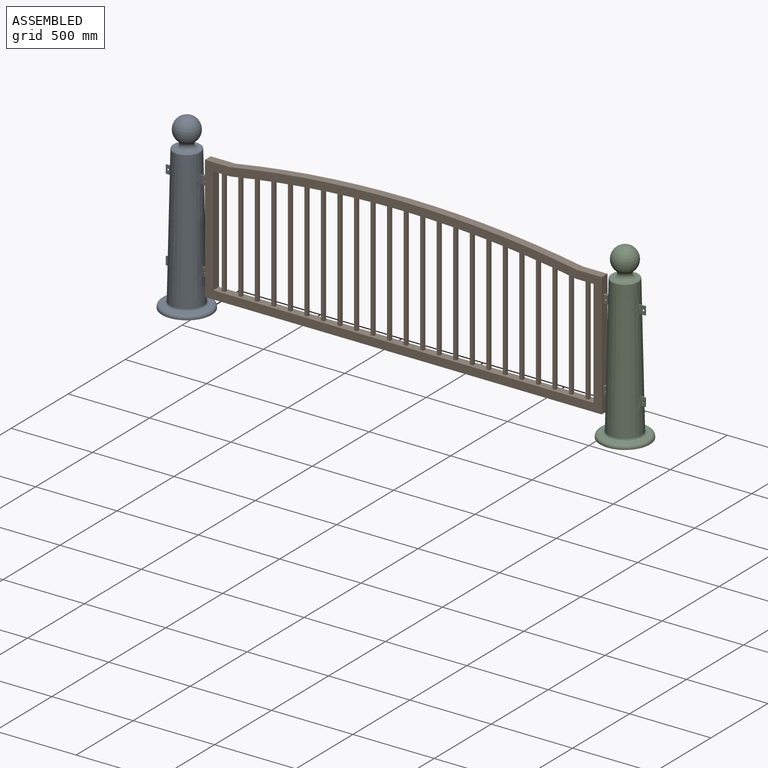
[diagram: assembled view]
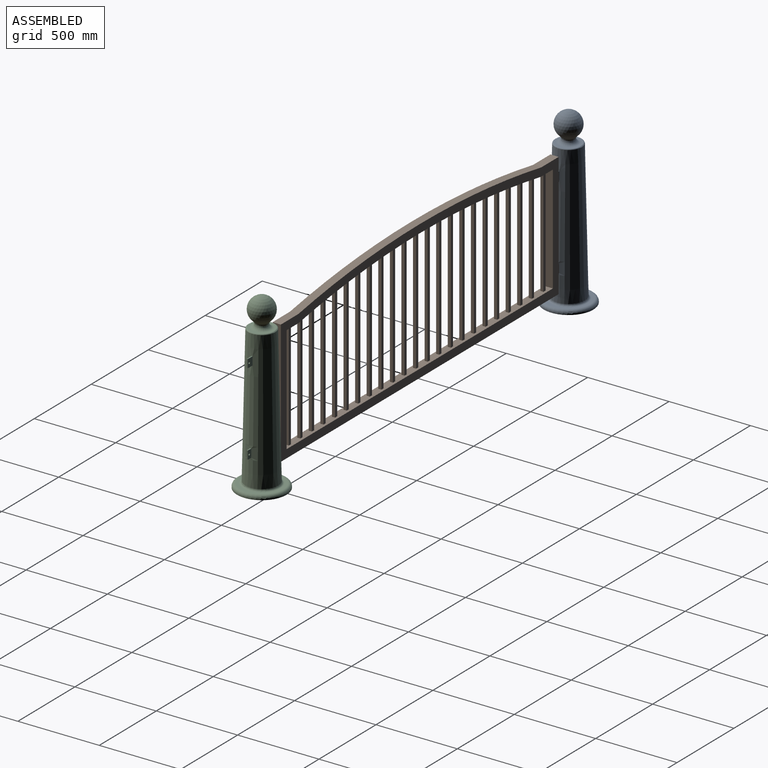
[diagram: assembled view, second angle]
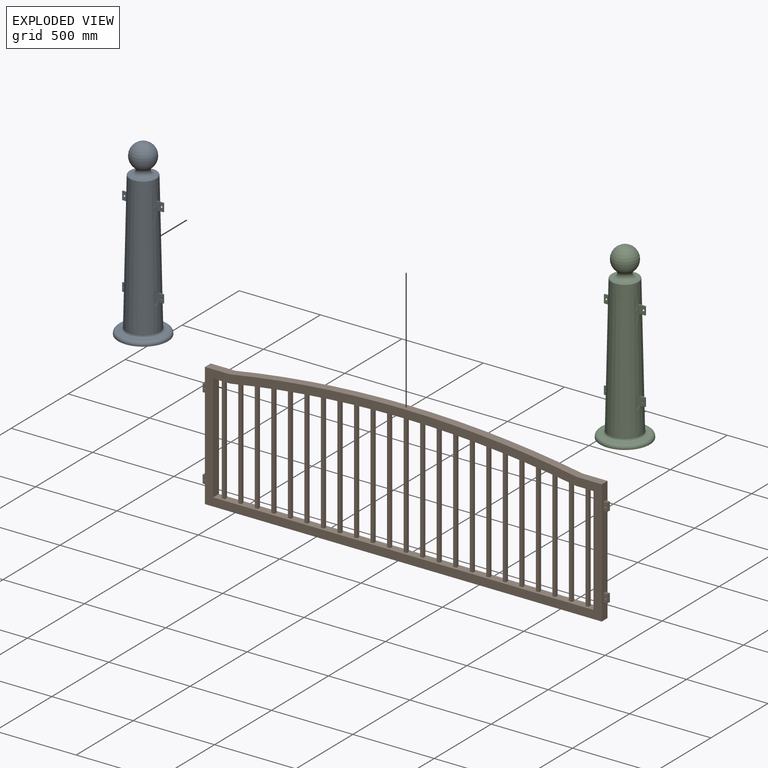
[diagram: exploded view]
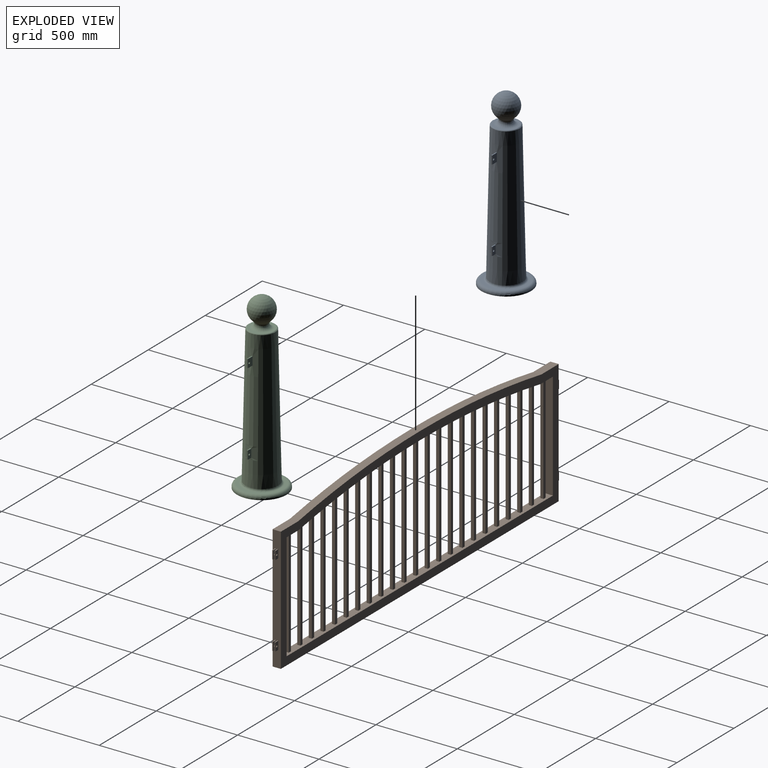
[diagram: exploded view, second angle]
ASSEMBLY  parts=3 mates=2
PART A: 35 faces, bbox 329.9x329.9x1074 mm
  f0: cone r=101.33mm half-angle=1.3deg, axis (0,0,-1), area 487300mm2, adj f8,f9,f11,f12,f14,f15,f17,f19
  f1: torus R=63.5mm, axis (0,0,-1), area 11492.2mm2, adj f2,f10
  f2: torus R=63.5mm, axis (0,0,-1), area 5539.6mm2, adj f1,f3
  f3: sphere r=76.2mm, area 64962.4mm2, adj f2
  f4: plane 304.8x304.8mm, normal (0,0,-1), area 72965.9mm2, adj f5
  f5: cylinder r=152.4mm len=304.8mm, axis (0,0,-1), area 6080.5mm2, adj f4,f6
  f6: torus R=133.35mm, axis (0,0,-1), area 27352.1mm2, adj f5,f7
  f7: plane 266.7x266.7mm, normal (0,0,1), area 15019.9mm2, adj f6,f8
  f8: torus R=114.02mm, axis (0,0,-1), area 13100.4mm2, adj f0,f7
  f9: torus R=76.34mm, axis (0,0,-1), area 4964.9mm2, adj f0,f10
  f10: plane 152.68x152.68mm, normal (0,0,1), area 5640.2mm2, adj f1,f9
  f11: plane 50.8x41.71mm, normal (0,1,0), area 1963.6mm2, adj f0,f12,f13,f14,f16
  f12: plane 41.71x6.35mm, normal (0,0,1), area 264.6mm2, adj f0,f11,f13,f15
  f13: plane 50.8x6.35mm, normal (1,0,0), area 322.6mm2, adj f11,f12,f14,f15
  f14: plane 40.59x6.35mm, normal (0,0,-1), area 257.5mm2, adj f0,f11,f13,f15
  f15: plane 50.8x41.71mm, normal (0,-1,0), area 1963.6mm2, adj f0,f12,f13,f14,f16
  f16: cylinder r=6.35mm len=12.7mm, axis (0,-1,0), area 253.4mm2, adj f11,f15
  f17: plane 30.5x6.35mm, normal (0,0,1), area 193.4mm2, adj f0,f18,f19,f20
  f18: plane 50.8x6.35mm, normal (1,0,0), area 322.6mm2, adj f17,f19,f20,f21
  f19: plane 50.8x30.5mm, normal (0,1,0), area 1394mm2, adj f0,f17,f18,f21,f22
  f20: plane 50.8x30.5mm, normal (0,-1,0), area 1394mm2, adj f0,f17,f18,f21,f22
  f21: plane 29.37x6.35mm, normal (0,0,-1), area 186.3mm2, adj f0,f18,f19,f20
  f22: cylinder r=6.35mm len=12.7mm, axis (0,-1,0), area 253.4mm2, adj f19,f20
  f23: plane 50.8x41.71mm, normal (0,1,0), area 1963.6mm2, adj f0,f24,f25,f26,f28
  f24: plane 41.71x6.35mm, normal (0,0,1), area 264.6mm2, adj f0,f23,f25,f27
  f25: plane 50.8x6.35mm, normal (-1,0,0), area 322.6mm2, adj f23,f24,f26,f27
  f26: plane 40.59x6.35mm, normal (0,0,-1), area 257.5mm2, adj f0,f23,f25,f27
  f27: plane 50.8x41.71mm, normal (0,-1,0), area 1963.6mm2, adj f0,f24,f25,f26,f28
  f28: cylinder r=6.35mm len=12.7mm, axis (0,-1,0), area 253.4mm2, adj f23,f27
  f29: plane 30.5x6.35mm, normal (0,0,1), area 193.4mm2, adj f0,f30,f31,f32
  f30: plane 50.8x6.35mm, normal (-1,0,0), area 322.6mm2, adj f29,f31,f32,f33
  f31: plane 50.8x30.5mm, normal (0,1,0), area 1394mm2, adj f0,f29,f30,f33,f34
  f32: plane 50.8x30.5mm, normal (0,-1,0), area 1394mm2, adj f0,f29,f30,f33,f34
  f33: plane 29.37x6.35mm, normal (0,0,-1), area 186.3mm2, adj f0,f30,f31,f32
  f34: cylinder r=6.35mm len=12.7mm, axis (0,-1,0), area 253.4mm2, adj f31,f32
PART B: 154 faces, bbox 2489.2x50.8x854.5 mm
  f0: plane 762x50.8mm, normal (1,0,0), area 37419.3mm2, adj f7,f8,f12,f13,f130,f131,f132,f133
  f1: plane 762x50.8mm, normal (-1,0,0), area 37419.3mm2, adj f7,f10,f12,f13,f106,f107,f108,f109
  f2: cylinder r=6146.8mm len=2124.77mm, axis (0,1,0), area 100823.5mm2, adj f3,f11,f12,f13,f18,f19,f20,f21
  f3: plane 106.01x50.8mm, normal (0,0,-1), area 5022.6mm2, adj f2,f4,f12,f13,f102,f103,f104,f105
  f4: plane 660.4x50.8mm, normal (-1,0,0), area 33548.3mm2, adj f3,f5,f12,f13
  f5: plane 2336.8x50.8mm, normal (0,0,1), area 110362.7mm2, adj f4,f6,f12,f13,f14,f15,f16,f17
  f6: plane 660.4x50.8mm, normal (1,0,0), area 33548.3mm2, adj f5,f11,f12,f13
  f7: plane 2438.4x50.8mm, normal (0,0,-1), area 123870.7mm2, adj f0,f1,f12,f13
  f8: plane 152.4x50.8mm, normal (0,0,1), area 7741.9mm2, adj f0,f9,f12,f13
  f9: cylinder r=6197.6mm len=2133.6mm, axis (0,1,0), area 108929.4mm2, adj f8,f10,f12,f13
  f10: plane 152.4x50.8mm, normal (0,0,1), area 7741.9mm2, adj f1,f9,f12,f13
  f11: plane 106.01x50.8mm, normal (0,0,-1), area 5022.6mm2, adj f2,f6,f12,f13,f14,f15,f16,f17
  f12: plane 2438.4x854.51mm, normal (0,-1,0), area 315381.7mm2, adj f0,f1,f2,f3,f4,f5,f6,f7
  f13: plane 2438.4x854.51mm, normal (0,1,0), area 315381.7mm2, adj f0,f1,f2,f3,f4,f5,f6,f7
  f14: plane 660.4x19.05mm, normal (0,-1,0), area 12580.6mm2, adj f5,f11,f15,f16
  f15: plane 660.4x19.05mm, normal (-1,0,0), area 12580.6mm2, adj f5,f11,f14,f17
  f16: plane 660.4x19.05mm, normal (1,0,0), area 12580.6mm2, adj f5,f11,f14,f17
  f17: plane 660.4x19.05mm, normal (0,1,0), area 12580.6mm2, adj f5,f11,f15,f16
  f18: plane 669.95x19.05mm, normal (0,-1,0), area 12732.1mm2, adj f2,f5,f19,f20
  f19: plane 669.95x19.05mm, normal (1,0,0), area 12762.5mm2, adj f2,f5,f18,f21
  f20: plane 666.75x19.05mm, normal (-1,0,0), area 12701.6mm2, adj f2,f5,f18,f21
  f21: plane 669.95x19.05mm, normal (0,1,0), area 12732.1mm2, adj f2,f5,f19,f20
  f22: plane 685.94x19.05mm, normal (0,-1,0), area 13039.9mm2, adj f2,f5,f23,f24
  f23: plane 685.94x19.05mm, normal (1,0,0), area 13067.1mm2, adj f2,f5,f22,f25
  f24: plane 683.07x19.05mm, normal (-1,0,0), area 13012.5mm2, adj f2,f5,f22,f25
  f25: plane 685.94x19.05mm, normal (0,1,0), area 13039.9mm2, adj f2,f5,f23,f24
  f26: plane 700.19x19.05mm, normal (0,-1,0), area 13314.6mm2, adj f2,f5,f27,f28
  f27: plane 700.19x19.05mm, normal (1,0,0), area 13338.7mm2, adj f2,f5,f26,f29
  f28: plane 697.65x19.05mm, normal (-1,0,0), area 13290.3mm2, adj f2,f5,f26,f29
  f29: plane 700.19x19.05mm, normal (0,1,0), area 13314.6mm2, adj f2,f5,f27,f28
  f30: plane 712.72x19.05mm, normal (0,-1,0), area 13556.4mm2, adj f2,f5,f31,f32
  f31: plane 712.72x19.05mm, normal (1,0,0), area 13577.4mm2, adj f2,f5,f30,f33
  f32: plane 710.51x19.05mm, normal (-1,0,0), area 13535.1mm2, adj f2,f5,f30,f33
  f33: plane 712.72x19.05mm, normal (0,1,0), area 13556.4mm2, adj f2,f5,f31,f32
  f34: plane 723.54x19.05mm, normal (0,-1,0), area 13765.5mm2, adj f2,f5,f35,f36
  f35: plane 723.54x19.05mm, normal (1,0,0), area 13783.5mm2, adj f2,f5,f34,f37
  f36: plane 721.65x19.05mm, normal (-1,0,0), area 13747.3mm2, adj f2,f5,f34,f37
  f37: plane 723.54x19.05mm, normal (0,1,0), area 13765.5mm2, adj f2,f5,f35,f36
  f38: plane 732.66x19.05mm, normal (0,-1,0), area 13942.2mm2, adj f2,f5,f39,f40
  f39: plane 732.66x19.05mm, normal (1,0,0), area 13957.2mm2, adj f2,f5,f38,f41
  f40: plane 731.08x19.05mm, normal (-1,0,0), area 13927.1mm2, adj f2,f5,f38,f41
  f41: plane 732.66x19.05mm, normal (0,1,0), area 13942.2mm2, adj f2,f5,f39,f40
  f42: plane 740.08x19.05mm, normal (0,-1,0), area 14086.6mm2, adj f2,f5,f43,f44
  f43: plane 740.08x19.05mm, normal (1,0,0), area 14098.5mm2, adj f2,f5,f42,f45
  f44: plane 738.82x19.05mm, normal (-1,0,0), area 14074.5mm2, adj f2,f5,f42,f45
  f45: plane 740.08x19.05mm, normal (0,1,0), area 14086.6mm2, adj f2,f5,f43,f44
  f46: plane 745.81x19.05mm, normal (0,-1,0), area 14198.7mm2, adj f2,f5,f47,f48
  f47: plane 745.81x19.05mm, normal (1,0,0), area 14207.7mm2, adj f2,f5,f46,f49
  f48: plane 744.86x19.05mm, normal (-1,0,0), area 14189.6mm2, adj f2,f5,f46,f49
  f49: plane 745.81x19.05mm, normal (0,1,0), area 14198.7mm2, adj f2,f5,f47,f48
  f50: plane 749.85x19.05mm, normal (0,-1,0), area 14278.8mm2, adj f2,f5,f51,f52
  f51: plane 749.85x19.05mm, normal (1,0,0), area 14284.7mm2, adj f2,f5,f50,f53
  f52: plane 749.22x19.05mm, normal (-1,0,0), area 14272.7mm2, adj f2,f5,f50,f53
  f53: plane 749.85x19.05mm, normal (0,1,0), area 14278.8mm2, adj f2,f5,f51,f52
  f54: plane 752.22x19.05mm, normal (0,-1,0), area 14326.8mm2, adj f2,f5,f55,f56
  f55: plane 752.22x19.05mm, normal (1,0,0), area 14329.7mm2, adj f2,f5,f54,f57
  f56: plane 751.9x19.05mm, normal (-1,0,0), area 14323.7mm2, adj f2,f5,f54,f57
  f57: plane 752.22x19.05mm, normal (0,1,0), area 14326.8mm2, adj f2,f5,f55,f56
  f58: plane 752.91x19.05mm, normal (0,-1,0), area 14342.8mm2, adj f2,f5,f59,f60
  f59: plane 752.9x19.05mm, normal (1,0,0), area 14342.7mm2, adj f2,f5,f58,f61
  f60: plane 752.9x19.05mm, normal (-1,0,0), area 14342.7mm2, adj f2,f5,f58,f61
  f61: plane 752.91x19.05mm, normal (0,1,0), area 14342.8mm2, adj f2,f5,f59,f60
  f62: plane 752.22x19.05mm, normal (0,-1,0), area 14326.8mm2, adj f2,f5,f63,f64
  f63: plane 751.9x19.05mm, normal (1,0,0), area 14323.7mm2, adj f2,f5,f62,f65
  f64: plane 752.22x19.05mm, normal (-1,0,0), area 14329.7mm2, adj f2,f5,f62,f65
  f65: plane 752.22x19.05mm, normal (0,1,0), area 14326.8mm2, adj f2,f5,f63,f64
  f66: plane 749.85x19.05mm, normal (0,-1,0), area 14278.8mm2, adj f2,f5,f67,f68
  f67: plane 749.22x19.05mm, normal (1,0,0), area 14272.7mm2, adj f2,f5,f66,f69
  f68: plane 749.85x19.05mm, normal (-1,0,0), area 14284.7mm2, adj f2,f5,f66,f69
  f69: plane 749.85x19.05mm, normal (0,1,0), area 14278.8mm2, adj f2,f5,f67,f68
  f70: plane 745.81x19.05mm, normal (0,-1,0), area 14198.7mm2, adj f2,f5,f71,f72
  f71: plane 744.86x19.05mm, normal (1,0,0), area 14189.6mm2, adj f2,f5,f70,f73
  f72: plane 745.81x19.05mm, normal (-1,0,0), area 14207.7mm2, adj f2,f5,f70,f73
  f73: plane 745.81x19.05mm, normal (0,1,0), area 14198.7mm2, adj f2,f5,f71,f72
  f74: plane 740.08x19.05mm, normal (0,-1,0), area 14086.6mm2, adj f2,f5,f75,f76
  f75: plane 738.82x19.05mm, normal (1,0,0), area 14074.5mm2, adj f2,f5,f74,f77
  f76: plane 740.08x19.05mm, normal (-1,0,0), area 14098.5mm2, adj f2,f5,f74,f77
  f77: plane 740.08x19.05mm, normal (0,1,0), area 14086.6mm2, adj f2,f5,f75,f76
  f78: plane 732.66x19.05mm, normal (0,-1,0), area 13942.2mm2, adj f2,f5,f79,f80
  f79: plane 731.08x19.05mm, normal (1,0,0), area 13927.1mm2, adj f2,f5,f78,f81
  f80: plane 732.66x19.05mm, normal (-1,0,0), area 13957.2mm2, adj f2,f5,f78,f81
  f81: plane 732.66x19.05mm, normal (0,1,0), area 13942.2mm2, adj f2,f5,f79,f80
  f82: plane 723.54x19.05mm, normal (0,-1,0), area 13765.5mm2, adj f2,f5,f83,f84
  f83: plane 721.65x19.05mm, normal (1,0,0), area 13747.3mm2, adj f2,f5,f82,f85
  f84: plane 723.54x19.05mm, normal (-1,0,0), area 13783.5mm2, adj f2,f5,f82,f85
  f85: plane 723.54x19.05mm, normal (0,1,0), area 13765.5mm2, adj f2,f5,f83,f84
  f86: plane 712.72x19.05mm, normal (0,-1,0), area 13556.4mm2, adj f2,f5,f87,f88
  f87: plane 710.51x19.05mm, normal (1,0,0), area 13535.1mm2, adj f2,f5,f86,f89
  f88: plane 712.72x19.05mm, normal (-1,0,0), area 13577.4mm2, adj f2,f5,f86,f89
  f89: plane 712.72x19.05mm, normal (0,1,0), area 13556.4mm2, adj f2,f5,f87,f88
  f90: plane 700.19x19.05mm, normal (0,-1,0), area 13314.6mm2, adj f2,f5,f91,f92
  f91: plane 697.65x19.05mm, normal (1,0,0), area 13290.3mm2, adj f2,f5,f90,f93
  f92: plane 700.19x19.05mm, normal (-1,0,0), area 13338.7mm2, adj f2,f5,f90,f93
  f93: plane 700.19x19.05mm, normal (0,1,0), area 13314.6mm2, adj f2,f5,f91,f92
  f94: plane 685.94x19.05mm, normal (0,-1,0), area 13039.9mm2, adj f2,f5,f95,f96
  f95: plane 683.07x19.05mm, normal (1,0,0), area 13012.5mm2, adj f2,f5,f94,f97
  f96: plane 685.94x19.05mm, normal (-1,0,0), area 13067.1mm2, adj f2,f5,f94,f97
  f97: plane 685.94x19.05mm, normal (0,1,0), area 13039.9mm2, adj f2,f5,f95,f96
  f98: plane 669.95x19.05mm, normal (0,-1,0), area 12732.1mm2, adj f2,f5,f99,f100
  f99: plane 666.75x19.05mm, normal (1,0,0), area 12701.6mm2, adj f2,f5,f98,f101
  f100: plane 669.95x19.05mm, normal (-1,0,0), area 12762.5mm2, adj f2,f5,f98,f101
  f101: plane 669.95x19.05mm, normal (0,1,0), area 12732.1mm2, adj f2,f5,f99,f100
  f102: plane 660.4x19.05mm, normal (0,-1,0), area 12580.6mm2, adj f3,f5,f103,f104
  f103: plane 660.4x19.05mm, normal (1,0,0), area 12580.6mm2, adj f3,f5,f102,f105
  f104: plane 660.4x19.05mm, normal (-1,0,0), area 12580.6mm2, adj f3,f5,f102,f105
  f105: plane 660.4x19.05mm, normal (0,1,0), area 12580.6mm2, adj f3,f5,f103,f104
  f106: plane 25.4x6.35mm, normal (0,0,1), area 161.3mm2, adj f1,f107,f109,f110
  f107: plane 50.8x25.4mm, normal (0,1,0), area 1163.6mm2, adj f1,f106,f108,f110,f111
  f108: plane 25.4x6.35mm, normal (0,0,-1), area 161.3mm2, adj f1,f107,f109,f110
  f109: plane 50.8x25.4mm, normal (0,-1,0), area 1163.6mm2, adj f1,f106,f108,f110,f111
  f110: plane 50.8x6.35mm, normal (-1,0,0), area 322.6mm2, adj f106,f107,f108,f109
  f111: cylinder r=6.35mm len=12.7mm, axis (0,-1,0), area 253.4mm2, adj f107,f109
  f112: plane 50.8x25.4mm, normal (0,-1,0), area 1163.6mm2, adj f1,f113,f115,f116,f117
  f113: plane 25.4x6.35mm, normal (0,0,1), area 161.3mm2, adj f1,f112,f114,f116
  f114: plane 50.8x25.4mm, normal (0,1,0), area 1163.6mm2, adj f1,f113,f115,f116,f117
  f115: plane 25.4x6.35mm, normal (0,0,-1), area 161.3mm2, adj f1,f112,f114,f116
  f116: plane 50.8x6.35mm, normal (-1,0,0), area 322.6mm2, adj f112,f113,f114,f115
  f117: cylinder r=6.35mm len=12.7mm, axis (0,-1,0), area 253.4mm2, adj f112,f114
  f118: plane 50.8x25.4mm, normal (0,1,0), area 1163.6mm2, adj f1,f119,f121,f122,f123
  f119: plane 25.4x6.35mm, normal (0,0,-1), area 161.3mm2, adj f1,f118,f120,f122
  f120: plane 50.8x25.4mm, normal (0,-1,0), area 1163.6mm2, adj f1,f119,f121,f122,f123
  f121: plane 25.4x6.35mm, normal (0,0,1), area 161.3mm2, adj f1,f118,f120,f122
  f122: plane 50.8x6.35mm, normal (-1,0,0), area 322.6mm2, adj f118,f119,f120,f121
  f123: cylinder r=6.35mm len=12.7mm, axis (0,-1,0), area 253.4mm2, adj f118,f120
  f124: plane 50.8x25.4mm, normal (0,-1,0), area 1163.6mm2, adj f1,f125,f127,f128,f129
  f125: plane 25.4x6.35mm, normal (0,0,1), area 161.3mm2, adj f1,f124,f126,f128
  f126: plane 50.8x25.4mm, normal (0,1,0), area 1163.6mm2, adj f1,f125,f127,f128,f129
  f127: plane 25.4x6.35mm, normal (0,0,-1), area 161.3mm2, adj f1,f124,f126,f128
  f128: plane 50.8x6.35mm, normal (-1,0,0), area 322.6mm2, adj f124,f125,f126,f127
  f129: cylinder r=6.35mm len=12.7mm, axis (0,-1,0), area 253.4mm2, adj f124,f126
  f130: plane 25.4x6.35mm, normal (0,0,1), area 161.3mm2, adj f0,f131,f133,f134
  f131: plane 50.8x25.4mm, normal (0,1,0), area 1163.6mm2, adj f0,f130,f132,f134,f135
  f132: plane 25.4x6.35mm, normal (0,0,-1), area 161.3mm2, adj f0,f131,f133,f134
  f133: plane 50.8x25.4mm, normal (0,-1,0), area 1163.6mm2, adj f0,f130,f132,f134,f135
  f134: plane 50.8x6.35mm, normal (1,0,0), area 322.6mm2, adj f130,f131,f132,f133
  f135: cylinder r=6.35mm len=12.7mm, axis (0,-1,0), area 253.4mm2, adj f131,f133
  f136: plane 50.8x25.4mm, normal (0,-1,0), area 1163.6mm2, adj f0,f137,f139,f140,f141
  f137: plane 25.4x6.35mm, normal (0,0,1), area 161.3mm2, adj f0,f136,f138,f140
  f138: plane 50.8x25.4mm, normal (0,1,0), area 1163.6mm2, adj f0,f137,f139,f140,f141
  f139: plane 25.4x6.35mm, normal (0,0,-1), area 161.3mm2, adj f0,f136,f138,f140
  f140: plane 50.8x6.35mm, normal (1,0,0), area 322.6mm2, adj f136,f137,f138,f139
  f141: cylinder r=6.35mm len=12.7mm, axis (0,-1,0), area 253.4mm2, adj f136,f138
  f142: plane 50.8x25.4mm, normal (0,1,0), area 1163.6mm2, adj f0,f143,f145,f146,f147
  f143: plane 25.4x6.35mm, normal (0,0,-1), area 161.3mm2, adj f0,f142,f144,f146
  f144: plane 50.8x25.4mm, normal (0,-1,0), area 1163.6mm2, adj f0,f143,f145,f146,f147
  f145: plane 25.4x6.35mm, normal (0,0,1), area 161.3mm2, adj f0,f142,f144,f146
  f146: plane 50.8x6.35mm, normal (1,0,0), area 322.6mm2, adj f142,f143,f144,f145
  f147: cylinder r=6.35mm len=12.7mm, axis (0,-1,0), area 253.4mm2, adj f142,f144
  f148: plane 50.8x25.4mm, normal (0,-1,0), area 1163.6mm2, adj f0,f149,f151,f152,f153
  f149: plane 25.4x6.35mm, normal (0,0,1), area 161.3mm2, adj f0,f148,f150,f152
  f150: plane 50.8x25.4mm, normal (0,1,0), area 1163.6mm2, adj f0,f149,f151,f152,f153
  f151: plane 25.4x6.35mm, normal (0,0,-1), area 161.3mm2, adj f0,f148,f150,f152
  f152: plane 50.8x6.35mm, normal (1,0,0), area 322.6mm2, adj f148,f149,f150,f151
  f153: cylinder r=6.35mm len=12.7mm, axis (0,-1,0), area 253.4mm2, adj f148,f150
PART C: same geometry as A
PLACE A t=(249.03,1257.66,-5.62)mm
PLACE B t=(376.03,1260.42,95.98)mm
PLACE C t=(2941.43,1257.66,-5.62)mm
MATE slider A.f16 <-> B.f111  axis (0,-1,0) through (363.33,1254.49,730.98)mm
MATE slider C.f34 <-> B.f147  axis (0,-1,0) through (2827.13,1254.49,222.98)mm
